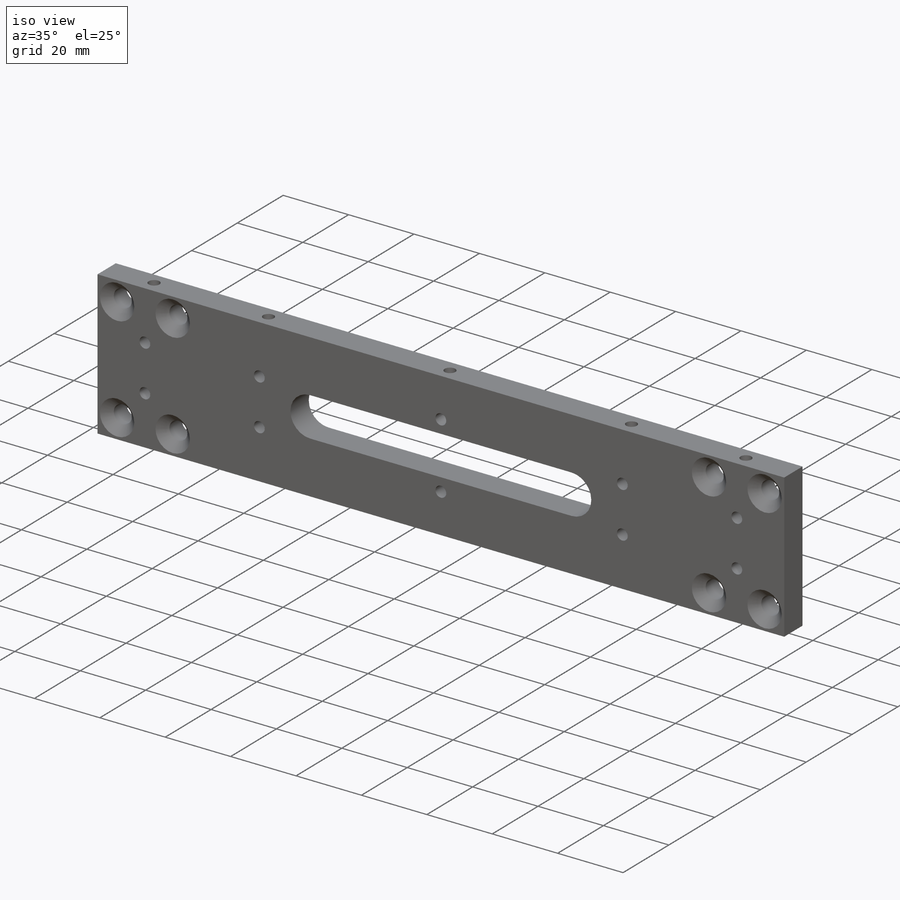
[diagram: iso view]
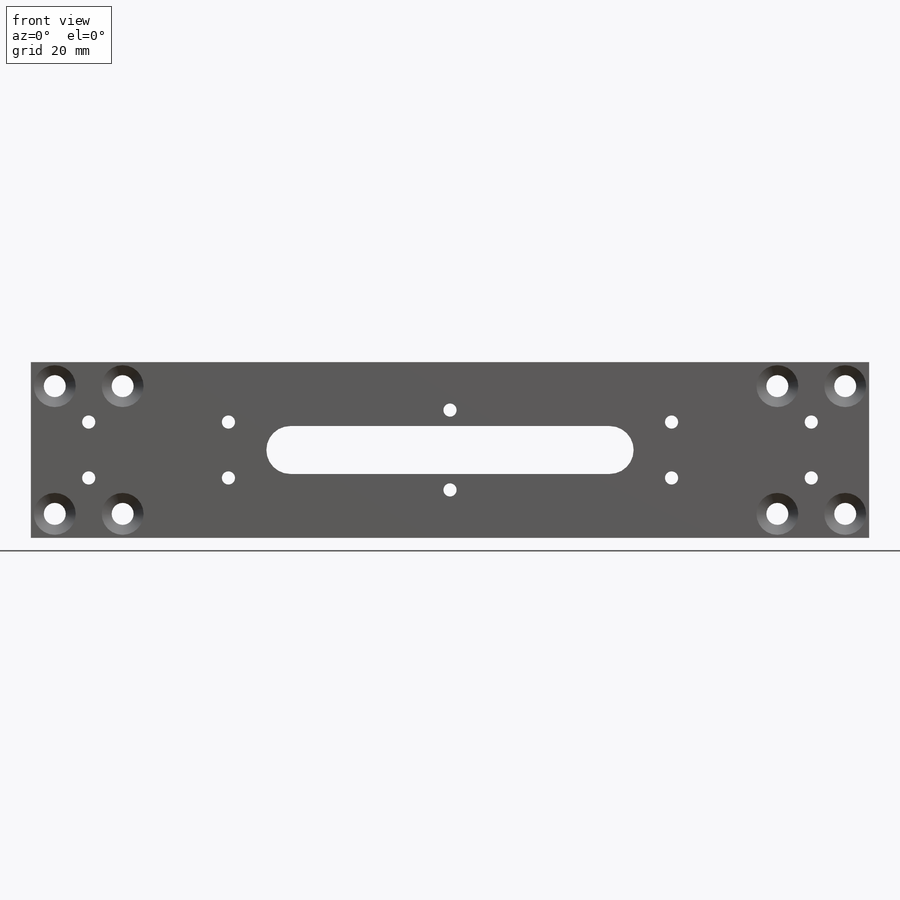
[diagram: front view]
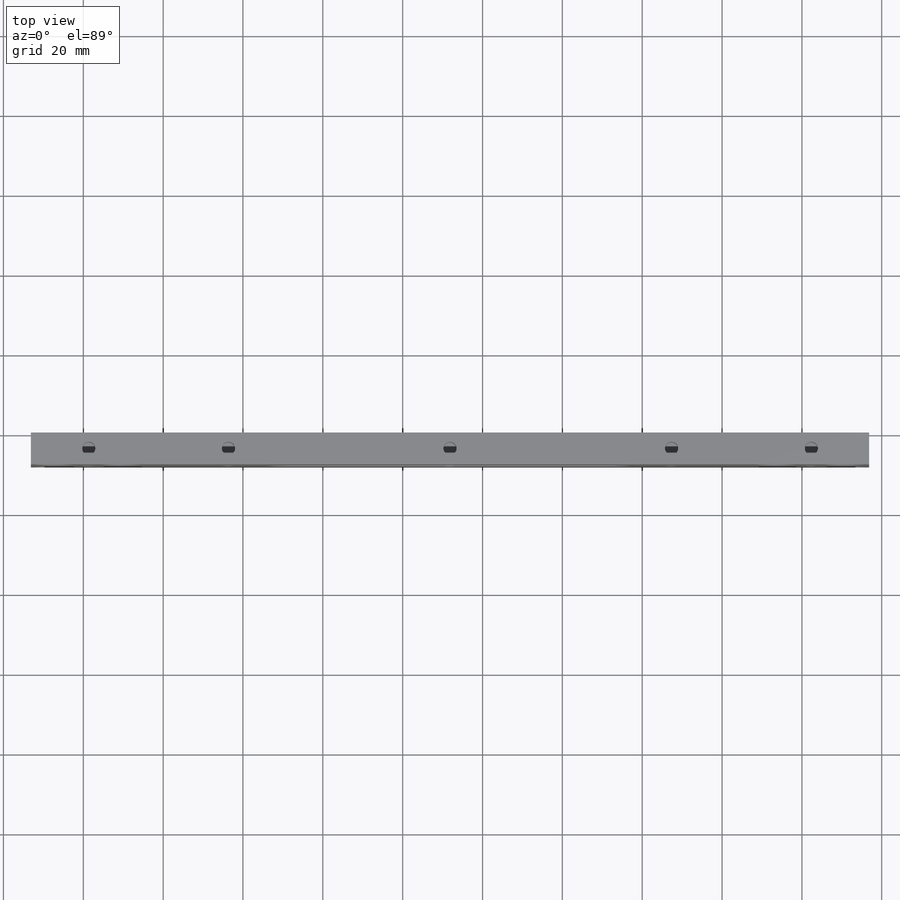
[diagram: top view]
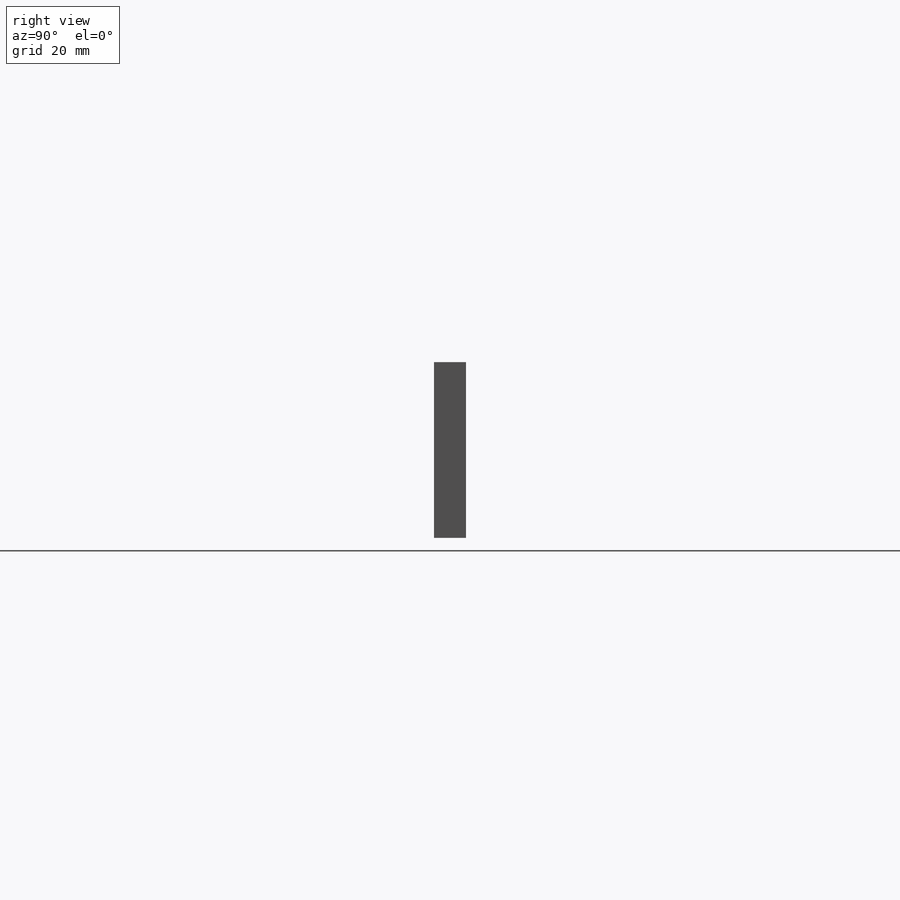
[diagram: right view]
SOLIDWORKS PART (.sldprt)
format: sldprt  version: not decoded by parser v0  size: 372,736 bytes
history: native  units: mm
features: sketch x6, cut_extrude x5, plane x3, material x1, extrude x1, chamfer x1 (+13 scaffold rows collapsed)
feature tree (30):
  scaffold x13  (default folders/planes/origin — collapsed)
  material  "Matériau <non spécifié>"
  plane  "Plan de face"
  plane  "Plan de dessus"
  plane  "Plan de droite"
  sketch  "Esquisse1"  dims[D1=210.0mm D2=44.0mm]
  extrude  "Boss.-Extru.1"  Depth=8mm
  sketch  "Esquisse2"  dims[c1.D1=5.5mm c1.D2=5.5mm c1.D3=5.5mm c1.D4=5.5mm c1.D5=5.5mm c1.D6=5.5mm c1.D7=5.5mm c1.D8=5.5mm c1.D9=5.5mm c1.D10=5.5mm c1.D11=5.5mm c1.D12=5.5mm c1.D13=5.5mm c1.D14=5.5mm c1.D15=5.5mm c1.D16=5.5mm c1.D18=~5.395439mm c1.D19=~5.395439mm c1.D20=5.5mm c1.D21=5.5mm c1.D22=5.5mm c1.D23=5.5mm c2.D2=6.0mm c2.D3=6.0mm c2.D4=6.0mm c2.D5=6.0mm c2.D8=17.0mm c2.D10=6.0mm c2.D11=17.0mm c2.D13=6.0mm c2.D14=6.0mm c2.D16=6.0mm c2.D17=6.0mm c2.D18=6.0mm c2.D19=17.0mm c2.D22=17.0mm c2.D23=6.0mm]
  cut_extrude  "Enlèv. mat.-Extru.1"  [1 undecoded]
  chamfer  "Chanfrein1"  Distance=2.5mm Angle=45deg
  sketch  "Esquisse3"  dims[D1=22.0mm D2=105.0mm D3=12.0mm]
  cut_extrude  "Enlèv. mat.-Extru.2"  [1 undecoded]
  sketch  "Esquisse4"  dims[c1.D1=3.3mm c1.D2=3.3mm c1.D3=3.3mm c1.D4=3.3mm c1.D5=3.3mm c1.D6=3.3mm c1.D9=3.3mm c1.D10=3.3mm c1.D12=3.3mm c1.D13=3.3mm c2.D9=3.3mm c2.D16=3.3mm c2.D17=3.3mm c2.D18=3.3mm c2.D2=15.0mm c2.D3=14.5mm c2.D5=15.0mm c2.D6=14.5mm c3.D9=81.0mm c3.D10=35.0mm c3.D12=14.5mm c3.D13=35.0mm c4.D9=74.0mm c4.D14=12.0mm c4.D15=105.0mm c4.D17=12.0mm c4.D18=105.0mm c4.D7=2.0 c4.D8=2.0 c4.D11=2.0]
  cut_extrude  "Enlèv. mat.-Extru.3"  [1 undecoded]
  sketch  "Esquisse5"  dims[c1.D1=3.3mm c1.D7=3.3mm c1.D8=3.3mm c1.D9=3.3mm c1.D10=3.3mm c1.D11=3.3mm c1.D2=4.0mm c1.D3=14.5mm c2.D7=74.0mm c2.D8=14.5mm c2.D9=35.0mm c2.D10=55.5mm c2.D11=55.5mm c2.D12=43.5mm c2.D4=2.0 c2.D5=2.0 c2.D6=2.0 c3.D7=2.0]
  cut_extrude  "Enlèv. mat.-Extru.4"  Depth=8mm
  sketch  "Esquisse6"  dims[c1.D1=3.3mm c1.D2=3.3mm c1.D3=3.3mm c1.D7=3.3mm c1.D10=3.3mm c1.D11=3.3mm c1.D12=3.3mm c2.D2=4.0mm c2.D3=14.5mm c2.D7=35.0mm c2.D8=14.5mm c2.D10=35.0mm c2.D11=55.5mm c2.D12=55.5mm c2.D4=2.0 c2.D5=2.0 c2.D6=2.0 c2.D9=2.0]
  cut_extrude  "Enlèv. mat.-Extru.5"  Depth=8mm
decode coverage: 10 of 13 modeling features carry decoded parameters
note: ~ marks probable driven/reference dimensions
note: 3 parameter values undecoded
summary: no parameter record found for 3 features
note: suppression state not decoded; provenance and decode notes live in map.json
